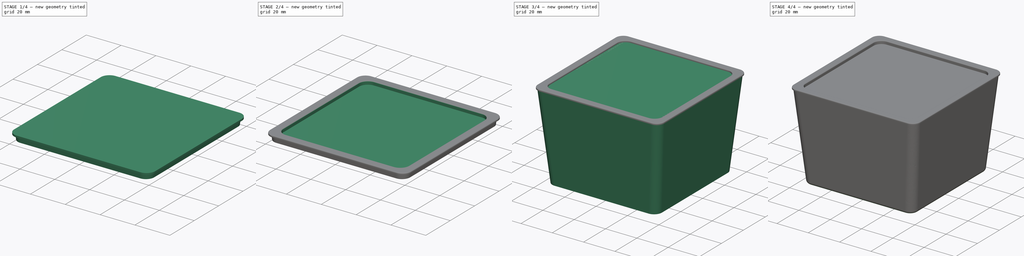
[diagram: build sequence overview — one tinted view per stage of 4, left to right]
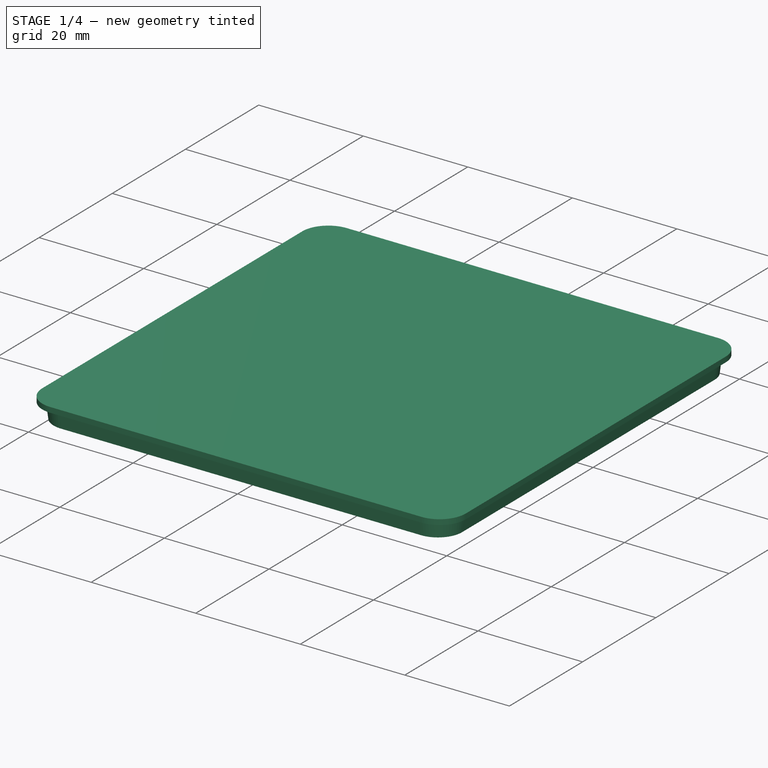
[diagram: stage 1 of 4 — iso view after this stage's code; geometry added in this stage tinted green]
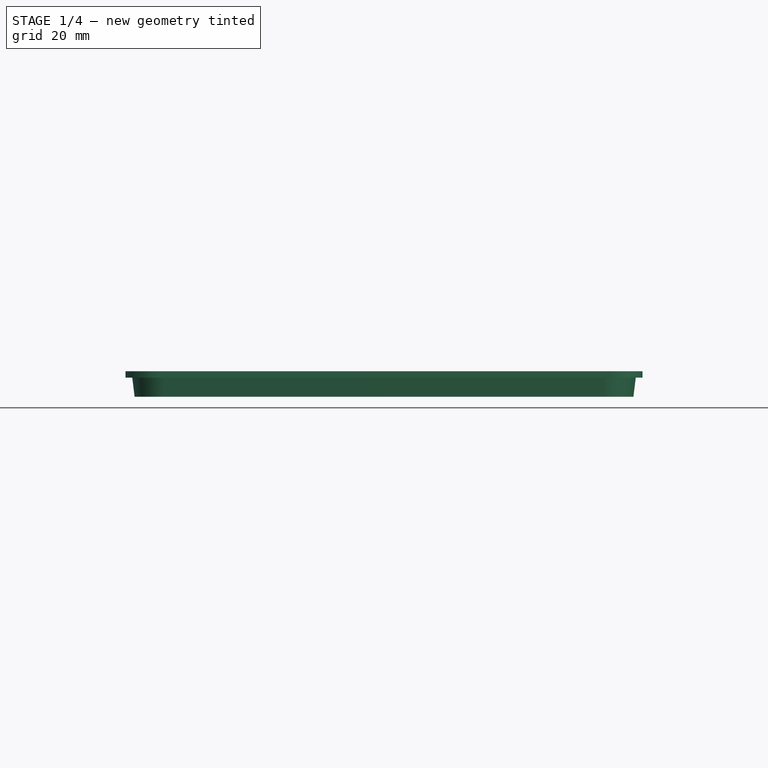
[diagram: stage 1 of 4 — front view after this stage's code; geometry added in this stage tinted green]
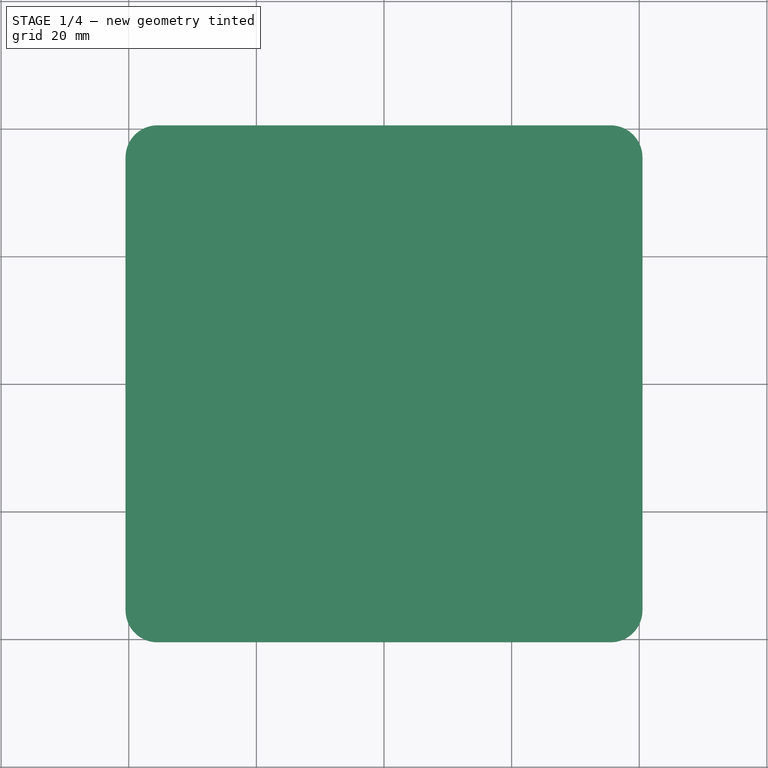
[diagram: stage 1 of 4 — top view after this stage's code; geometry added in this stage tinted green]
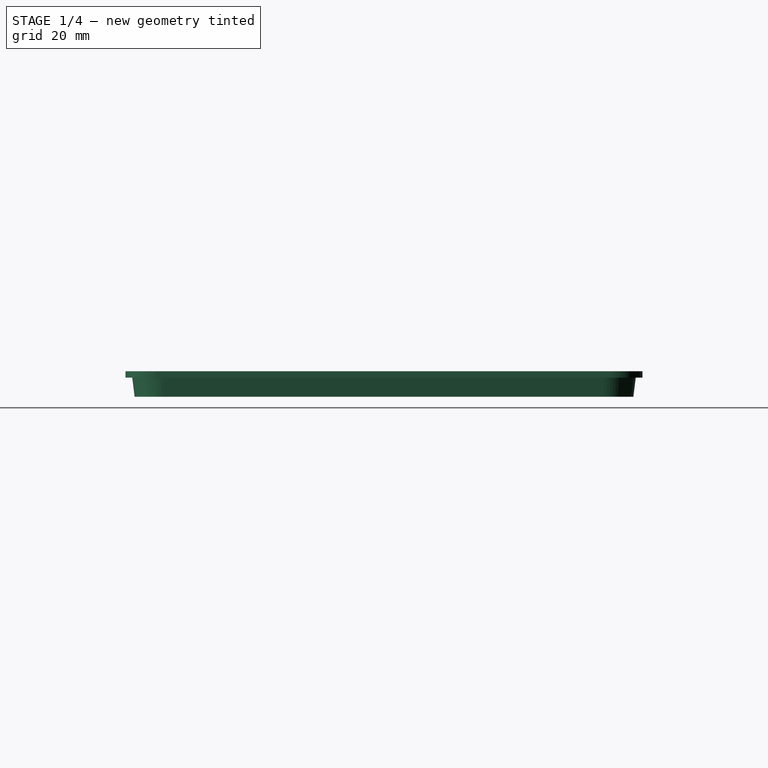
[diagram: stage 1 of 4 — right view after this stage's code; geometry added in this stage tinted green]
FCSTD DOCUMENT  (FreeCAD 0.20RUnknown)
Label: box_rounded_corners_v3
License: All rights reserved
LicenseURL: http://en.wikipedia.org/wiki/All_rights_reserved
objects: Sketcher::SketchObject×7, PartDesign::Fillet×3, PartDesign::Body×3, PartDesign::AdditiveLoft×2, PartDesign::Pad×2, PartDesign::Boolean×1, Spreadsheet::Sheet×1, PartDesign::Pocket×1
note: 27 computed .brp shape members not serialized (recipe doc carries the construction recipe); baked Part::Feature solids carry a one-line shape summary decoded from their .brp

FEATURE [PartDesign::Body] Body  label="Box"
  Group = -> [Sketch,Sketch001,AdditiveLoft,Fillet,Boolean]
  Origin = -> Origin
  Tip = -> Boolean
FEATURE [Spreadsheet::Sheet] Spreadsheet
  cells = A1=box.width; B1(box_width)=80; A2=box.length; B2(box_length)=80; A3=box.height; B3(box_height)=55; A4=box.width_bottom; B4(box_width_bottom)==box_width - 10; A5=box.length_bottom; B5(box_length_bottom)==box_length - 10
FEATURE [Sketcher::SketchObject] Sketch004  label="inner_lid_sketch"
  FullyConstrained = true
  MapMode = 5
  Support = -> [XY_Plane002]
  expr: Constraints[16] = Spreadsheet.box_length - 1.1
  expr: Constraints[17] = Spreadsheet.box_width - 1.1
  sketch-geometry (8):
    g0: LineSegment StartX=-34.45 StartY=39.45 StartZ=0 EndX=34.45 EndY=39.45 EndZ=0
    g1: LineSegment StartX=39.45 StartY=34.45 StartZ=0 EndX=39.45 EndY=-34.45 EndZ=0
    g2: LineSegment StartX=34.45 StartY=-39.45 StartZ=0 EndX=-34.45 EndY=-39.45 EndZ=0
    g3: LineSegment StartX=-39.45 StartY=-34.45 StartZ=0 EndX=-39.45 EndY=34.45 EndZ=0
    g4: ArcOfCircle CenterX=34.45 CenterY=34.45 CenterZ=0 NormalX=0 NormalY=0 NormalZ=1 AngleXU=0 Radius=5 StartAngle=0 EndAngle=1.5708
    g5: ArcOfCircle CenterX=34.45 CenterY=-34.45 CenterZ=0 NormalX=0 NormalY=0 NormalZ=1 AngleXU=0 Radius=5 StartAngle=4.71239 EndAngle=6.28319
    g6: ArcOfCircle CenterX=-34.45 CenterY=34.45 CenterZ=0 NormalX=0 NormalY=0 NormalZ=1 AngleXU=0 Radius=5 StartAngle=1.5708 EndAngle=3.14159
    g7: ArcOfCircle CenterX=-34.45 CenterY=-34.45 CenterZ=0 NormalX=0 NormalY=0 NormalZ=1 AngleXU=0 Radius=5 StartAngle=3.14159 EndAngle=4.71239
  constraints (19):
    c: Horizontal(g0)
    c: Horizontal(g2)
    c: Vertical(g1)
    c: Vertical(g3)
    c: Tangent(g0,g4) = 1.5708
    c: Tangent(g1,g4) = 1.5708
    c: Tangent(g1,g5) = 1.5708
    c: Tangent(g2,g5) = 1.5708
    c: Tangent(g0,g6) = 1.5708
    c: Tangent(g3,g6) = 1.5708
    c: Tangent(g2,g7) = 1.5708
    c: Tangent(g3,g7) = 1.5708
    c: Radius(g6) = 5
    c: Equal(g6,g7)
    c: Equal(g6,g4)
    c: Equal(g6,g5)
    c: DistanceX(g3,g1) = 78.9
    c: DistanceY(g2,g0) = 78.9
    c: Symmetric(g6,g5,g-1)
FEATURE [Sketcher::SketchObject] Sketch005  label="outer_lid_sketch"
  FullyConstrained = true
  MapMode = 5
  Support = -> [XY_Plane002]
  expr: Constraints[16] = Spreadsheet.box_length + 1
  expr: Constraints[17] = Spreadsheet.box_width + 1
  sketch-geometry (8):
    g0: LineSegment StartX=-35.5 StartY=40.5 StartZ=0 EndX=35.5 EndY=40.5 EndZ=0
    g1: LineSegment StartX=40.5 StartY=35.5 StartZ=0 EndX=40.5 EndY=-35.5 EndZ=0
    g2: LineSegment StartX=35.5 StartY=-40.5 StartZ=0 EndX=-35.5 EndY=-40.5 EndZ=0
    g3: LineSegment StartX=-40.5 StartY=-35.5 StartZ=0 EndX=-40.5 EndY=35.5 EndZ=0
    g4: ArcOfCircle CenterX=35.5 CenterY=35.5 CenterZ=0 NormalX=0 NormalY=0 NormalZ=1 AngleXU=0 Radius=5 StartAngle=0 EndAngle=1.5708
    g5: ArcOfCircle CenterX=35.5 CenterY=-35.5 CenterZ=0 NormalX=0 NormalY=0 NormalZ=1 AngleXU=0 Radius=5 StartAngle=4.71239 EndAngle=6.28319
    g6: ArcOfCircle CenterX=-35.5 CenterY=35.5 CenterZ=0 NormalX=0 NormalY=0 NormalZ=1 AngleXU=0 Radius=5 StartAngle=1.5708 EndAngle=3.14159
    g7: ArcOfCircle CenterX=-35.5 CenterY=-35.5 CenterZ=0 NormalX=0 NormalY=0 NormalZ=1 AngleXU=0 Radius=5 StartAngle=3.14159 EndAngle=4.71239
  constraints (19):
    c: Horizontal(g0)
    c: Horizontal(g2)
    c: Vertical(g1)
    c: Vertical(g3)
    c: Tangent(g0,g4) = 1.5708
    c: Tangent(g1,g4) = 1.5708
    c: Tangent(g1,g5) = 1.5708
    c: Tangent(g2,g5) = 1.5708
    c: Tangent(g0,g6) = 1.5708
    c: Tangent(g3,g6) = 1.5708
    c: Tangent(g2,g7) = 1.5708
    c: Tangent(g3,g7) = 1.5708
    c: Radius(g6) = 5
    c: Equal(g6,g7)
    c: Equal(g6,g4)
    c: Equal(g6,g5)
    c: DistanceX(g3,g1) = 81
    c: DistanceY(g2,g0) = 81
    c: Symmetric(g6,g5,g-1)
FEATURE [PartDesign::Pad] Pad
  Direction = (0,0,1)
  Length = 1
  Length2 = 10
  Profile = -> Sketch005
  ReferenceAxis = -> Sketch005 [N_Axis]
  Type = 0
FEATURE [PartDesign::Pad] Pad001
  BaseFeature = -> Pad
  Direction = (0,0,1)
  Length = 3
  Length2 = 10
  Profile = -> Sketch004
  ReferenceAxis = -> Sketch004 [N_Axis]
  Reversed = true
  TaperAngle = -7
  Type = 0
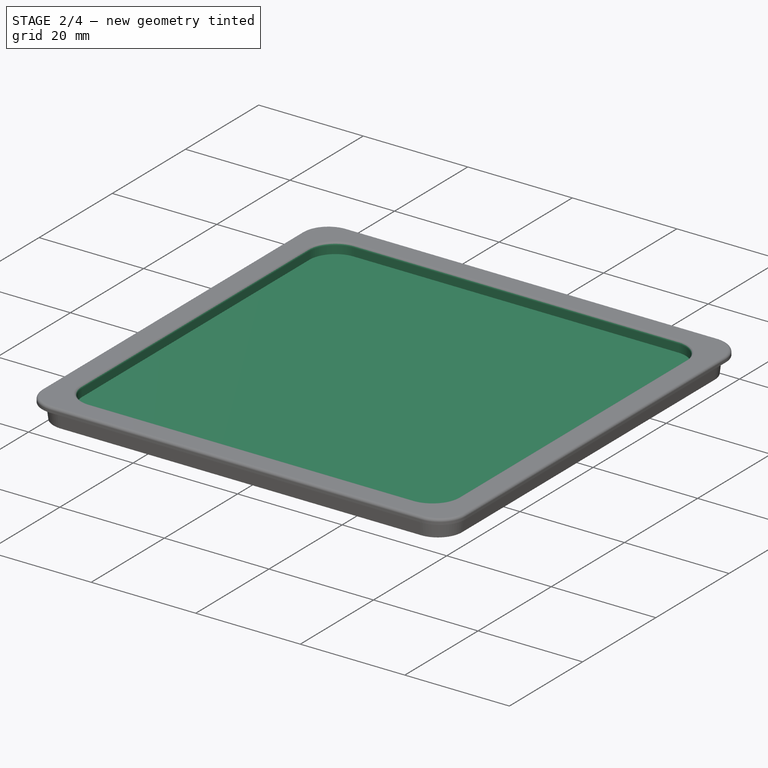
[diagram: stage 2 of 4 — iso view after this stage's code; geometry added in this stage tinted green]
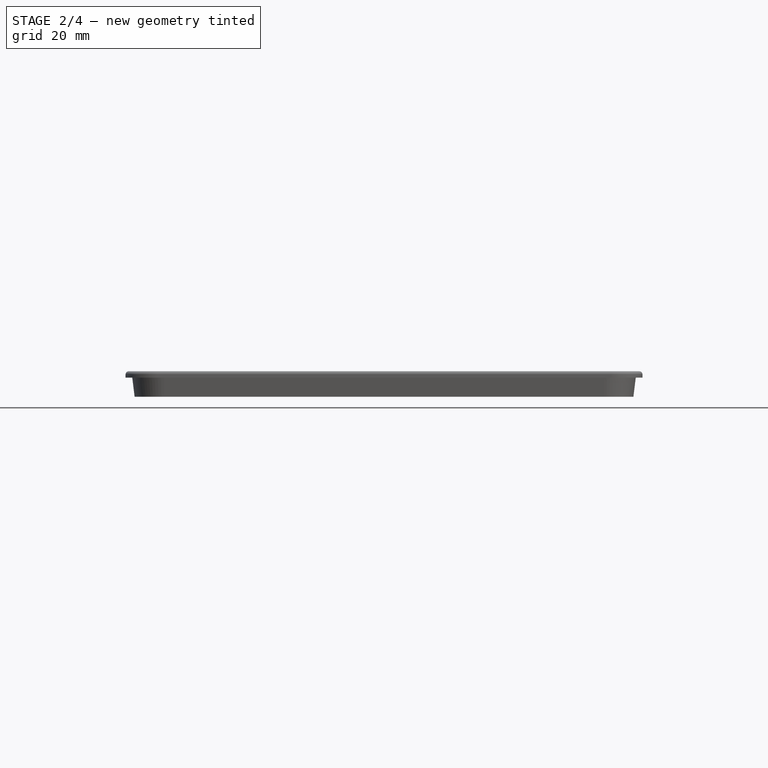
[diagram: stage 2 of 4 — front view after this stage's code; geometry added in this stage tinted green]
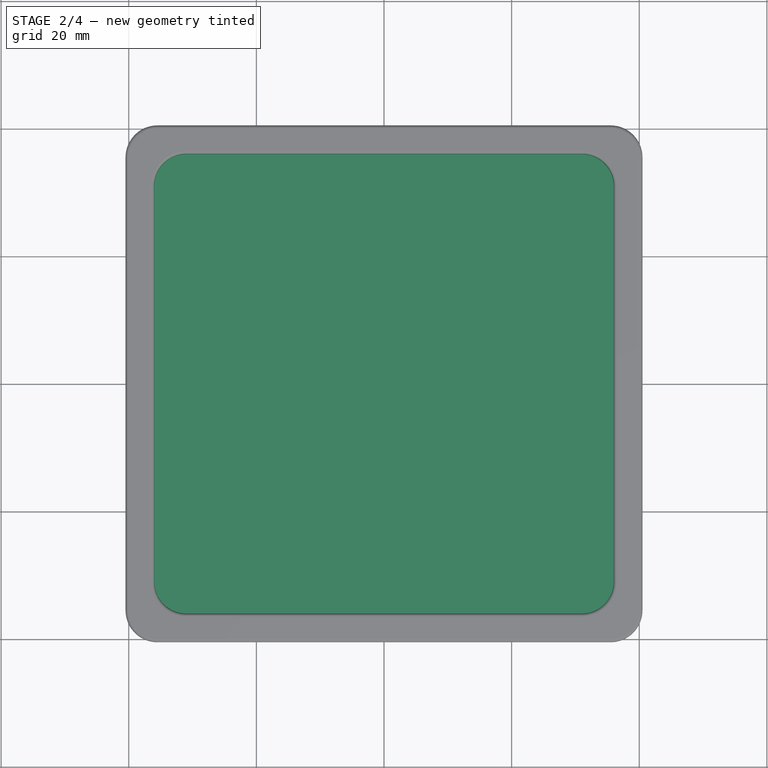
[diagram: stage 2 of 4 — top view after this stage's code; geometry added in this stage tinted green]
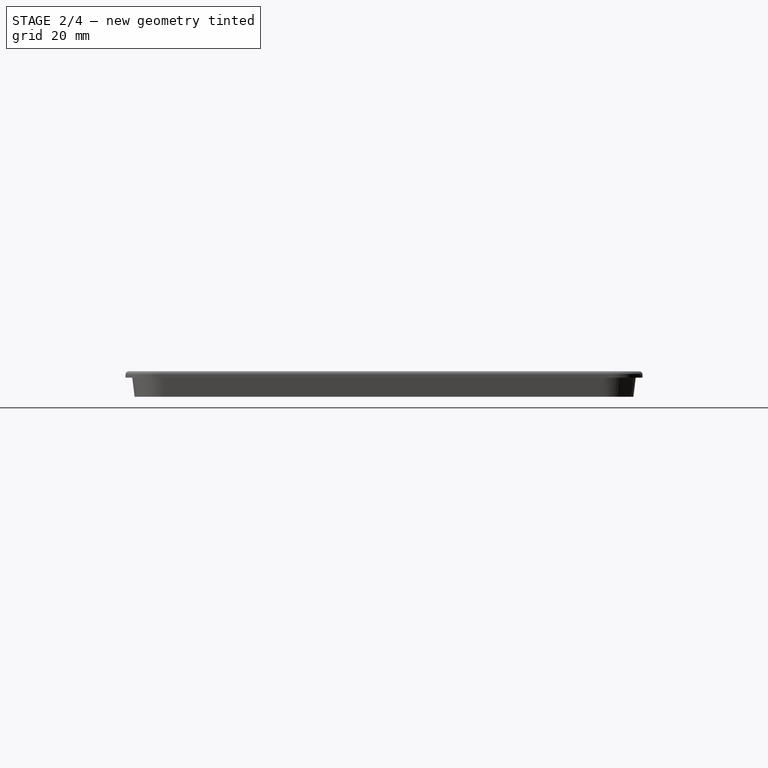
[diagram: stage 2 of 4 — right view after this stage's code; geometry added in this stage tinted green]
FEATURE [Sketcher::SketchObject] Sketch006  label="lid_top_outline"
  AttachmentOffset = pos=(0,0,-1) rot=(0,0,1;0rad)
  FullyConstrained = true
  MapMode = 5
  Placement = pos=(0,0,-1) rot=(0,0,1;0rad)
  Support = -> [XY_Plane002]
  expr: Constraints[16] = Spreadsheet.box_length_bottom + 2
  expr: Constraints[17] = Spreadsheet.box_width_bottom + 2
  sketch-geometry (8):
    g0: LineSegment StartX=-31 StartY=36 StartZ=0 EndX=31 EndY=36 EndZ=0
    g1: LineSegment StartX=36 StartY=31 StartZ=0 EndX=36 EndY=-31 EndZ=0
    g2: LineSegment StartX=31 StartY=-36 StartZ=0 EndX=-31 EndY=-36 EndZ=0
    g3: LineSegment StartX=-36 StartY=-31 StartZ=0 EndX=-36 EndY=31 EndZ=0
    g4: ArcOfCircle CenterX=-31 CenterY=31 CenterZ=0 NormalX=0 NormalY=0 NormalZ=1 AngleXU=0 Radius=5 StartAngle=1.5708 EndAngle=3.14159
    g5: ArcOfCircle CenterX=-31 CenterY=-31 CenterZ=0 NormalX=0 NormalY=0 NormalZ=1 AngleXU=0 Radius=5 StartAngle=3.14159 EndAngle=4.71239
    g6: ArcOfCircle CenterX=31 CenterY=-31 CenterZ=0 NormalX=0 NormalY=0 NormalZ=1 AngleXU=0 Radius=5 StartAngle=4.71239 EndAngle=6.28319
    g7: ArcOfCircle CenterX=31 CenterY=31 CenterZ=0 NormalX=0 NormalY=0 NormalZ=1 AngleXU=0 Radius=5 StartAngle=0 EndAngle=1.5708
  constraints (19):
    c: Horizontal(g0)
    c: Horizontal(g2)
    c: Vertical(g1)
    c: Vertical(g3)
    c: Tangent(g0,g4) = 1.5708
    c: Tangent(g3,g4) = 1.5708
    c: Tangent(g2,g5) = 1.5708
    c: Tangent(g3,g5) = 1.5708
    c: Tangent(g1,g6) = 1.5708
    c: Tangent(g2,g6) = 1.5708
    c: Tangent(g0,g7) = 1.5708
    c: Tangent(g1,g7) = 1.5708
    c: Radius(g5) = 5
    c: Equal(g5,g4)
    c: Equal(g5,g7)
    c: Equal(g5,g6)
    c: DistanceX(g3,g1) = 72
    c: DistanceY(g2,g0) = 72
    c: Symmetric(g6,g4,g-1)
FEATURE [PartDesign::Pocket] Pocket
  BaseFeature = -> Pad001
  Direction = (0,0,-1)
  Length = 5
  Length2 = 5
  Profile = -> Sketch006
  ReferenceAxis = -> Sketch006 [N_Axis]
  Reversed = true
  Type = 1
FEATURE [PartDesign::Fillet] Fillet002
  Base = -> Pocket [Edge35,Edge36,Edge29,Edge30,Edge31,Edge32,Edge33,Edge34,Edge4,Edge7,Edge24,Edge26,Edge28,Edge27,Edge25,Edge10]
  BaseFeature = -> Pocket
  Radius = 0.5
  SupportTransform = false
  UseAllEdges = false
FEATURE [PartDesign::Body] Body002  label="Lid"
  Group = -> [Sketch004,Sketch005,Pad,Pad001,Sketch006,Pocket,Fillet002]
  Origin = -> Origin002
  Tip = -> Fillet002
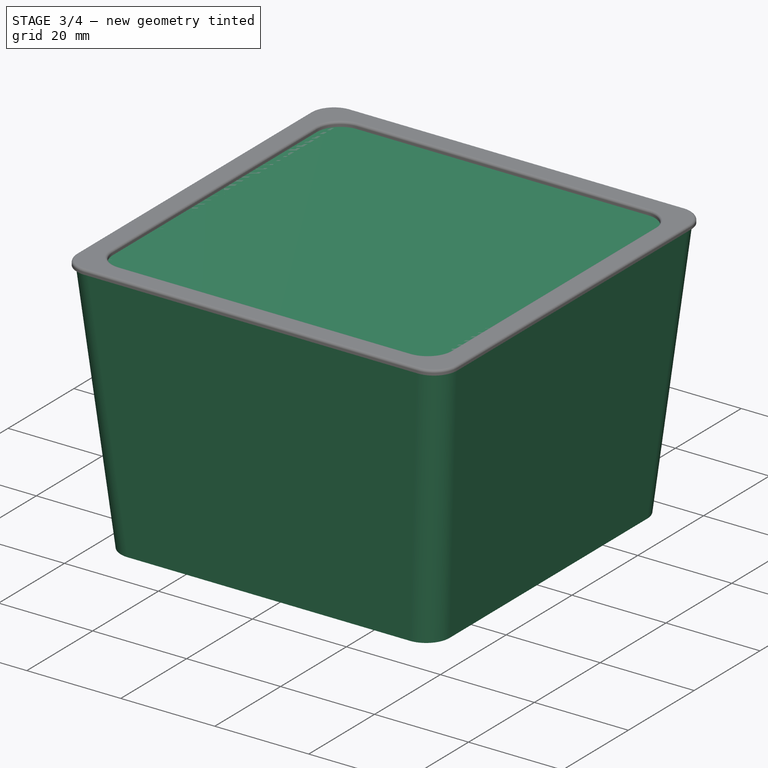
[diagram: stage 3 of 4 — iso view after this stage's code; geometry added in this stage tinted green]
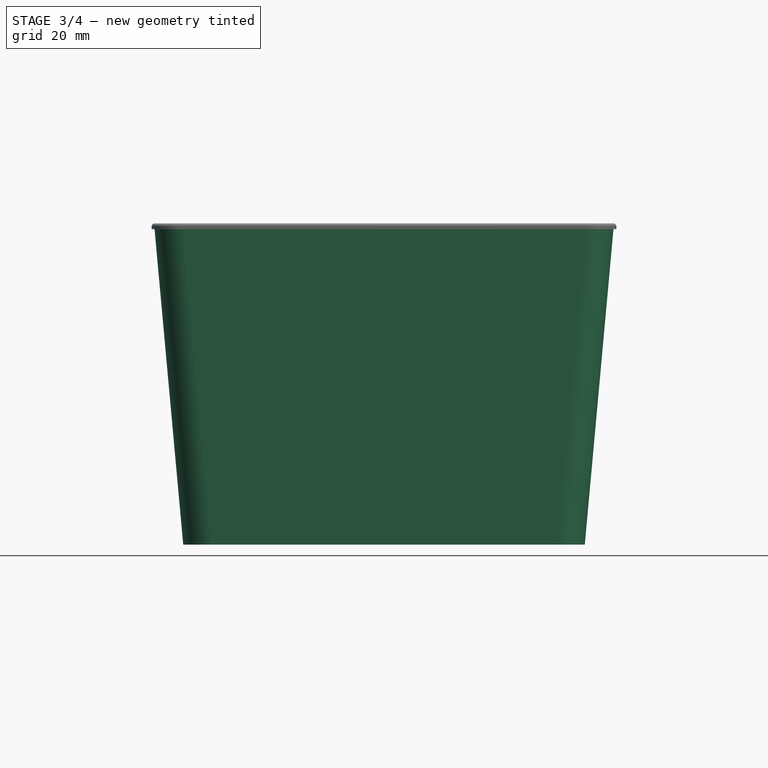
[diagram: stage 3 of 4 — front view after this stage's code; geometry added in this stage tinted green]
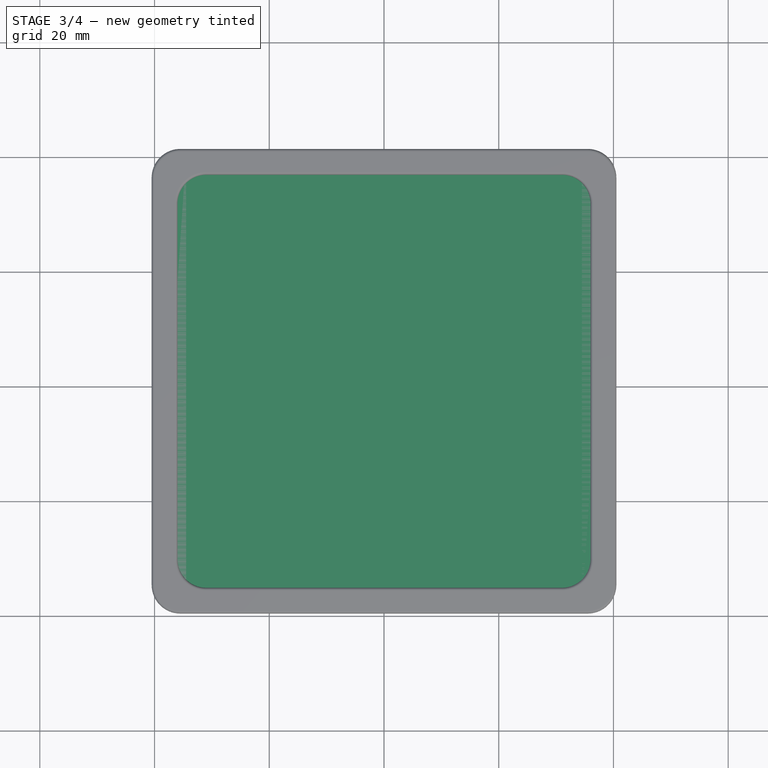
[diagram: stage 3 of 4 — top view after this stage's code; geometry added in this stage tinted green]
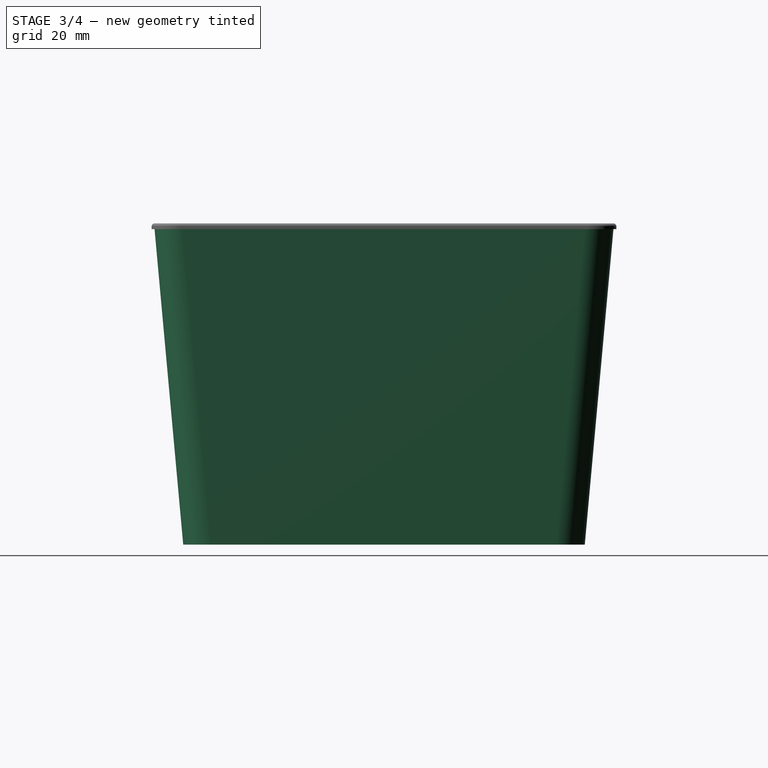
[diagram: stage 3 of 4 — right view after this stage's code; geometry added in this stage tinted green]
FEATURE [Sketcher::SketchObject] Sketch
  FullyConstrained = true
  MapMode = 5
  Support = -> [XY_Plane]
  expr: Constraints[16] = Spreadsheet.box_length
  expr: Constraints[17] = Spreadsheet.box_width
  sketch-geometry (8):
    g0: LineSegment StartX=-35 StartY=40 StartZ=0 EndX=35 EndY=40 EndZ=0
    g1: LineSegment StartX=40 StartY=35 StartZ=0 EndX=40 EndY=-35 EndZ=0
    g2: LineSegment StartX=35 StartY=-40 StartZ=0 EndX=-35 EndY=-40 EndZ=0
    g3: LineSegment StartX=-40 StartY=-35 StartZ=0 EndX=-40 EndY=35 EndZ=0
    g4: ArcOfCircle CenterX=35 CenterY=35 CenterZ=0 NormalX=0 NormalY=0 NormalZ=1 AngleXU=0 Radius=5 StartAngle=4e-16 EndAngle=1.5708
    g5: ArcOfCircle CenterX=35 CenterY=-35 CenterZ=0 NormalX=0 NormalY=0 NormalZ=1 AngleXU=0 Radius=5 StartAngle=4.71239 EndAngle=6.28319
    g6: ArcOfCircle CenterX=-35 CenterY=35 CenterZ=0 NormalX=0 NormalY=0 NormalZ=1 AngleXU=0 Radius=5 StartAngle=1.5708 EndAngle=3.14159
    g7: ArcOfCircle CenterX=-35 CenterY=-35 CenterZ=0 NormalX=0 NormalY=0 NormalZ=1 AngleXU=0 Radius=5 StartAngle=3.14159 EndAngle=4.71239
  constraints (19):
    c: Horizontal(g0)
    c: Horizontal(g2)
    c: Vertical(g1)
    c: Vertical(g3)
    c: Tangent(g0,g4) = 1.5708
    c: Tangent(g1,g4) = 1.5708
    c: Tangent(g1,g5) = 1.5708
    c: Tangent(g2,g5) = 1.5708
    c: Tangent(g0,g6) = 1.5708
    c: Tangent(g3,g6) = 1.5708
    c: Tangent(g2,g7) = 1.5708
    c: Tangent(g3,g7) = 1.5708
    c: Radius(g6) = 5
    c: Equal(g6,g7)
    c: Equal(g6,g4)
    c: Equal(g6,g5)
    c: DistanceX(g3,g1) = 80
    c: DistanceY(g2,g0) = 80
    c: Symmetric(g6,g5,g-1)
FEATURE [Sketcher::SketchObject] Sketch001
  AttachmentOffset = pos=(0,0,-55) rot=(0,0,1;0rad)
  FullyConstrained = true
  MapMode = 5
  Placement = pos=(0,0,-55) rot=(0,0,1;0rad)
  Support = -> [XY_Plane]
  expr: .AttachmentOffset.Base.z = -Spreadsheet.box_height
  expr: Constraints[16] = Spreadsheet.box_length_bottom
  expr: Constraints[17] = Spreadsheet.box_width_bottom
  sketch-geometry (8):
    g0: LineSegment StartX=-30 StartY=35 StartZ=0 EndX=30 EndY=35 EndZ=0
    g1: LineSegment StartX=35 StartY=30 StartZ=0 EndX=35 EndY=-30 EndZ=0
    g2: LineSegment StartX=30 StartY=-35 StartZ=0 EndX=-30 EndY=-35 EndZ=0
    g3: LineSegment StartX=-35 StartY=-30 StartZ=0 EndX=-35 EndY=30 EndZ=0
    g4: ArcOfCircle CenterX=-30 CenterY=30 CenterZ=0 NormalX=0 NormalY=0 NormalZ=1 AngleXU=0 Radius=5 StartAngle=1.5708 EndAngle=3.14159
    g5: ArcOfCircle CenterX=-30 CenterY=-30 CenterZ=0 NormalX=0 NormalY=0 NormalZ=1 AngleXU=0 Radius=5 StartAngle=3.14159 EndAngle=4.71239
    g6: ArcOfCircle CenterX=30 CenterY=-30 CenterZ=0 NormalX=0 NormalY=0 NormalZ=1 AngleXU=0 Radius=5 StartAngle=4.71239 EndAngle=6.28319
    g7: ArcOfCircle CenterX=30 CenterY=30 CenterZ=0 NormalX=0 NormalY=0 NormalZ=1 AngleXU=0 Radius=5 StartAngle=2e-16 EndAngle=1.5708
  constraints (19):
    c: Horizontal(g0)
    c: Horizontal(g2)
    c: Vertical(g1)
    c: Vertical(g3)
    c: Tangent(g0,g4) = 1.5708
    c: Tangent(g3,g4) = 1.5708
    c: Tangent(g2,g5) = 1.5708
    c: Tangent(g3,g5) = 1.5708
    c: Tangent(g1,g6) = 1.5708
    c: Tangent(g2,g6) = 1.5708
    c: Tangent(g0,g7) = 1.5708
    c: Tangent(g1,g7) = 1.5708
    c: Radius(g5) = 5
    c: Equal(g5,g4)
    c: Equal(g5,g7)
    c: Equal(g5,g6)
    c: DistanceX(g3,g1) = 70
    c: DistanceY(g2,g0) = 70
    c: Symmetric(g6,g4,g-1)
FEATURE [PartDesign::AdditiveLoft] AdditiveLoft
  Closed = false
  Profile = -> Sketch001
  Ruled = false
  Sections = -> [Sketch]
FEATURE [Sketcher::SketchObject] Sketch002
  AttachmentOffset = pos=(0,0,-55) rot=(0,0,1;0rad)
  FullyConstrained = true
  MapMode = 5
  Placement = pos=(0,0,-55) rot=(0,0,1;0rad)
  Support = -> [XY_Plane001]
  expr: Constraints[16] = Spreadsheet.box_length_bottom - 1
  expr: Constraints[17] = Spreadsheet.box_width_bottom - 1
  sketch-geometry (8):
    g0: LineSegment StartX=-29.5 StartY=34.5 StartZ=0 EndX=29.5 EndY=34.5 EndZ=0
    g1: LineSegment StartX=34.5 StartY=29.5 StartZ=0 EndX=34.5 EndY=-29.5 EndZ=0
    g2: LineSegment StartX=29.5 StartY=-34.5 StartZ=0 EndX=-29.5 EndY=-34.5 EndZ=0
    g3: LineSegment StartX=-34.5 StartY=-29.5 StartZ=0 EndX=-34.5 EndY=29.5 EndZ=0
    g4: ArcOfCircle CenterX=-29.5 CenterY=29.5 CenterZ=0 NormalX=0 NormalY=0 NormalZ=1 AngleXU=0 Radius=5 StartAngle=1.5708 EndAngle=3.14159
    g5: ArcOfCircle CenterX=-29.5 CenterY=-29.5 CenterZ=0 NormalX=0 NormalY=0 NormalZ=1 AngleXU=0 Radius=5 StartAngle=3.14159 EndAngle=4.71239
    g6: ArcOfCircle CenterX=29.5 CenterY=-29.5 CenterZ=0 NormalX=0 NormalY=0 NormalZ=1 AngleXU=0 Radius=5 StartAngle=4.71239 EndAngle=6.28319
    g7: ArcOfCircle CenterX=29.5 CenterY=29.5 CenterZ=0 NormalX=0 NormalY=0 NormalZ=1 AngleXU=0 Radius=5 StartAngle=0 EndAngle=1.5708
  constraints (19):
    c: Horizontal(g0)
    c: Horizontal(g2)
    c: Vertical(g1)
    c: Vertical(g3)
    c: Tangent(g0,g4) = 1.5708
    c: Tangent(g3,g4) = 1.5708
    c: Tangent(g2,g5) = 1.5708
    c: Tangent(g3,g5) = 1.5708
    c: Tangent(g1,g6) = 1.5708
    c: Tangent(g2,g6) = 1.5708
    c: Tangent(g0,g7) = 1.5708
    c: Tangent(g1,g7) = 1.5708
    c: Radius(g5) = 5
    c: Equal(g5,g4)
    c: Equal(g5,g7)
    c: Equal(g5,g6)
    c: DistanceX(g3,g1) = 69
    c: DistanceY(g2,g0) = 69
    c: Symmetric(g6,g4,g-1)
FEATURE [Sketcher::SketchObject] Sketch003
  FullyConstrained = true
  MapMode = 5
  Support = -> [XY_Plane001]
  expr: Constraints[16] = Spreadsheet.box_length - 1
  expr: Constraints[17] = Spreadsheet.box_width - 1
  sketch-geometry (8):
    g0: LineSegment StartX=-34.5 StartY=39.5 StartZ=0 EndX=34.5 EndY=39.5 EndZ=0
    g1: LineSegment StartX=39.5 StartY=34.5 StartZ=0 EndX=39.5 EndY=-34.5 EndZ=0
    g2: LineSegment StartX=34.5 StartY=-39.5 StartZ=0 EndX=-34.5 EndY=-39.5 EndZ=0
    g3: LineSegment StartX=-39.5 StartY=-34.5 StartZ=0 EndX=-39.5 EndY=34.5 EndZ=0
    g4: ArcOfCircle CenterX=34.5 CenterY=34.5 CenterZ=0 NormalX=0 NormalY=0 NormalZ=1 AngleXU=0 Radius=5 StartAngle=5e-16 EndAngle=1.5708
    g5: ArcOfCircle CenterX=34.5 CenterY=-34.5 CenterZ=0 NormalX=0 NormalY=0 NormalZ=1 AngleXU=0 Radius=5 StartAngle=4.71239 EndAngle=6.28319
    g6: ArcOfCircle CenterX=-34.5 CenterY=34.5 CenterZ=0 NormalX=0 NormalY=0 NormalZ=1 AngleXU=0 Radius=5 StartAngle=1.5708 EndAngle=3.14159
    g7: ArcOfCircle CenterX=-34.5 CenterY=-34.5 CenterZ=0 NormalX=0 NormalY=0 NormalZ=1 AngleXU=0 Radius=5 StartAngle=3.14159 EndAngle=4.71239
  constraints (19):
    c: Horizontal(g0)
    c: Horizontal(g2)
    c: Vertical(g1)
    c: Vertical(g3)
    c: Tangent(g0,g4) = 1.5708
    c: Tangent(g1,g4) = 1.5708
    c: Tangent(g1,g5) = 1.5708
    c: Tangent(g2,g5) = 1.5708
    c: Tangent(g0,g6) = 1.5708
    c: Tangent(g3,g6) = 1.5708
    c: Tangent(g2,g7) = 1.5708
    c: Tangent(g3,g7) = 1.5708
    c: Radius(g6) = 5
    c: Equal(g6,g7)
    c: Equal(g6,g4)
    c: Equal(g6,g5)
    c: DistanceX(g3,g1) = 79
    c: DistanceY(g2,g0) = 79
    c: Symmetric(g6,g5,g-1)
FEATURE [PartDesign::AdditiveLoft] AdditiveLoft001
  Closed = false
  Profile = -> Sketch002
  Ruled = false
  Sections = -> [Sketch003]
FEATURE [PartDesign::Fillet] Fillet001
  Base = -> AdditiveLoft001 [Face1]
  BaseFeature = -> AdditiveLoft001
  Radius = 2
  SupportTransform = false
  UseAllEdges = false
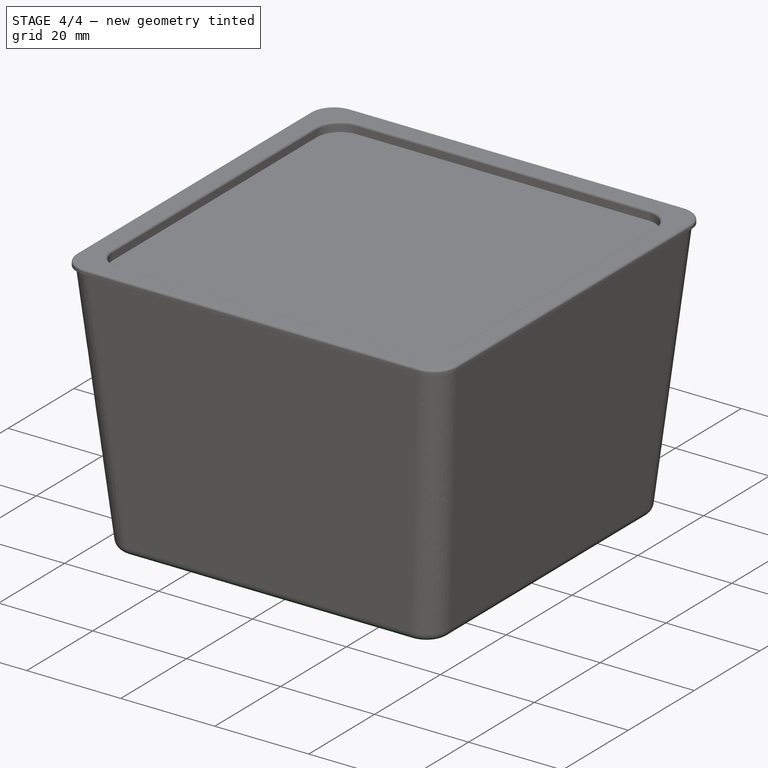
[diagram: stage 4 of 4 — iso view after this stage's code; geometry added in this stage tinted green]
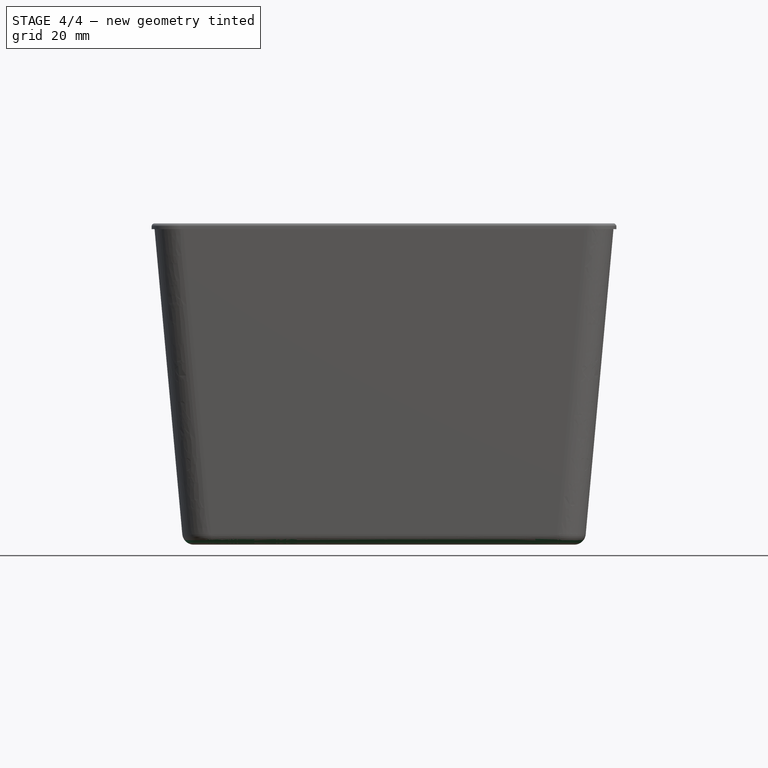
[diagram: stage 4 of 4 — front view after this stage's code; geometry added in this stage tinted green]
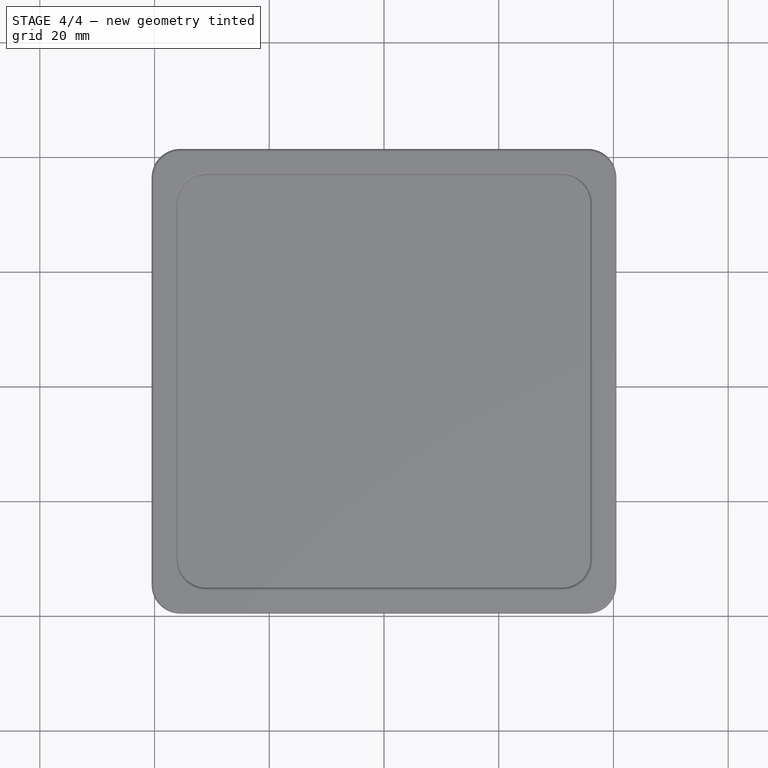
[diagram: stage 4 of 4 — top view after this stage's code; geometry added in this stage tinted green]
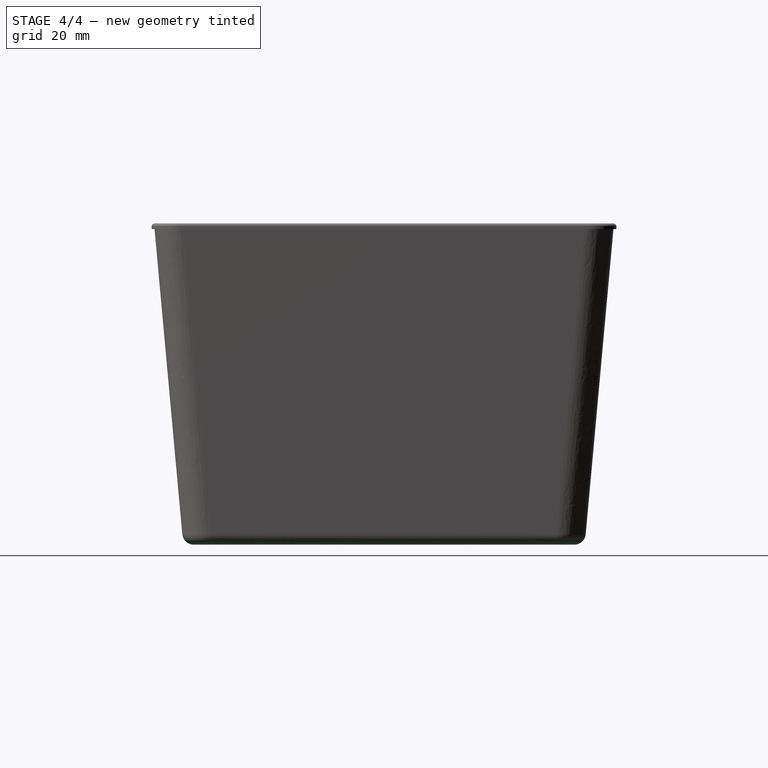
[diagram: stage 4 of 4 — right view after this stage's code; geometry added in this stage tinted green]
FEATURE [PartDesign::Fillet] Fillet
  Base = -> AdditiveLoft [Face1]
  BaseFeature = -> AdditiveLoft
  Radius = 2
  SupportTransform = false
  UseAllEdges = false
FEATURE [PartDesign::Body] Body001
  Group = -> [Sketch003,Sketch002,AdditiveLoft001,Fillet001]
  Origin = -> Origin001
  Placement = pos=(0,0,1.5) rot=(0,0,1;0rad)
  Tip = -> Fillet001
FEATURE [PartDesign::Boolean] Boolean
  BaseFeature = -> Fillet
  Group = -> [Body001]
  Type = 1
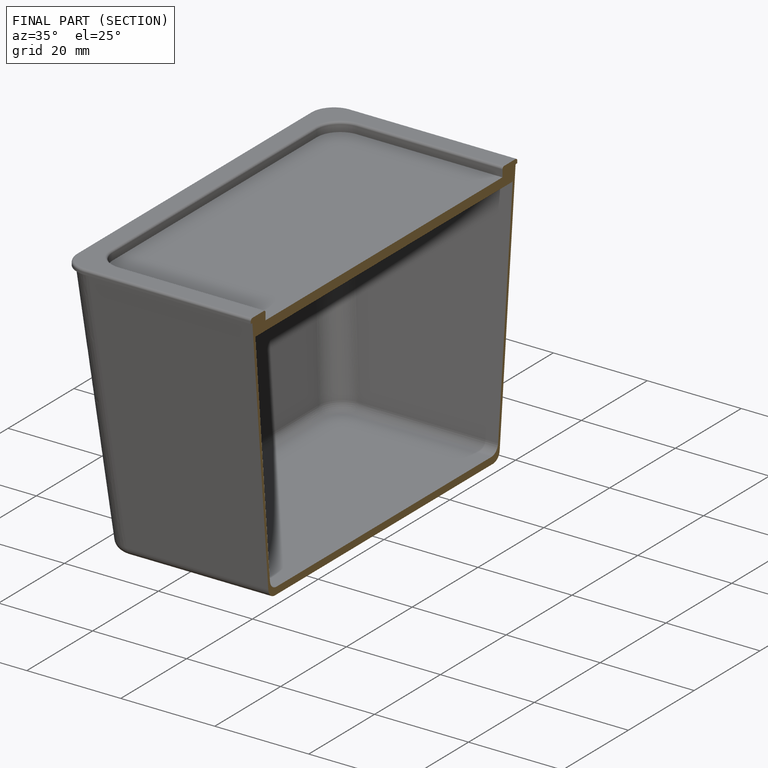
[diagram: finished part — half-section view (interior)]
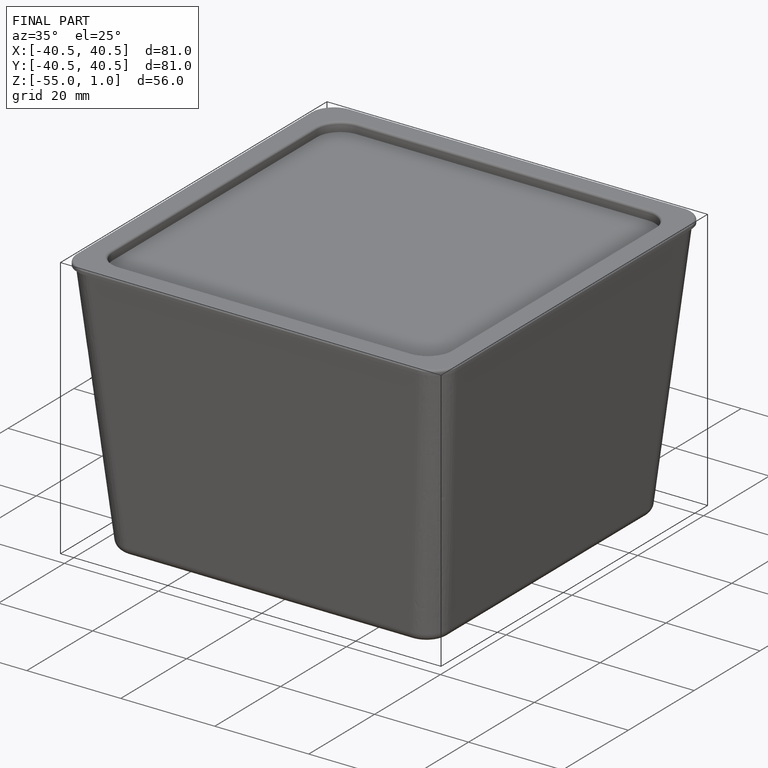
[diagram: finished part — iso view with bounding-box wireframe]
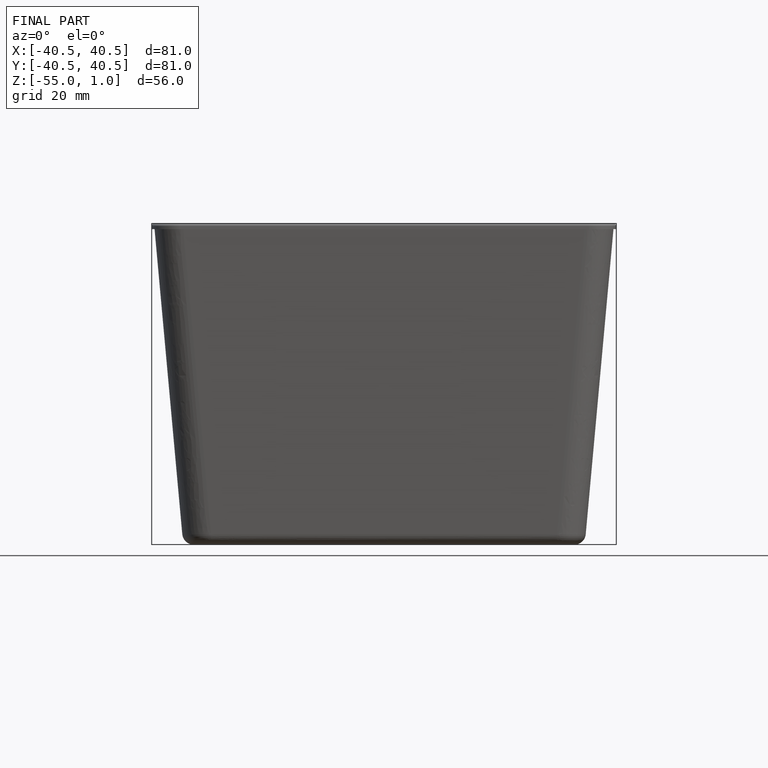
[diagram: finished part — front view with bounding-box wireframe]
